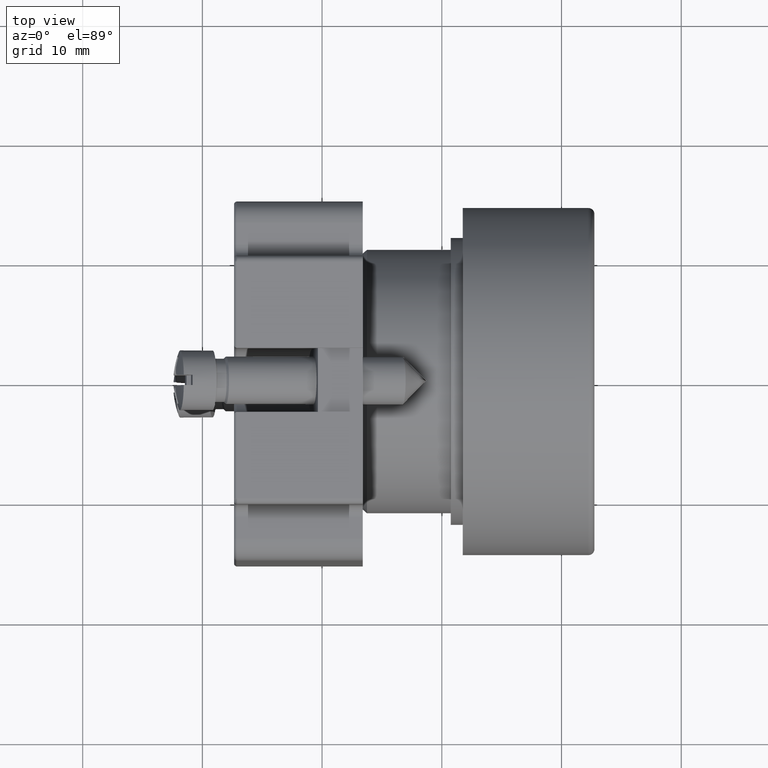
[diagram: clean part render]
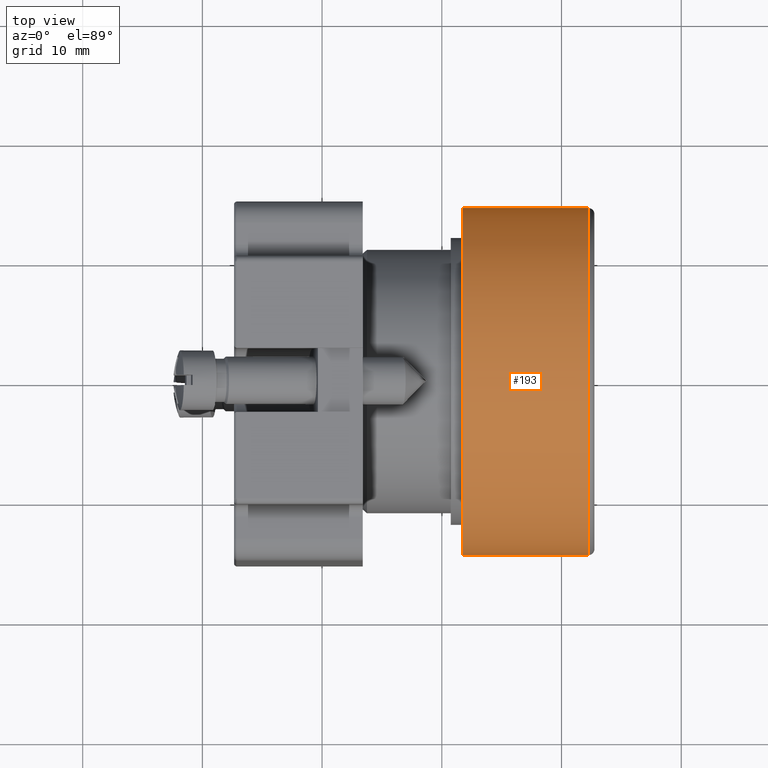
[diagram: same view with one face highlighted and labeled with its STEP entity id]
A machine part, top view. The second image highlights one B-rep face of the part: STEP entity #193.
In plain terms, the highlighted cylindrical surface (bore or boss wall) has radius 14.5 mm, axis along (1, -0, 0).
Its self-contained STEP definition (entity closure, byte-faithful):
#151=CARTESIAN_POINT('',(2.248486254077102,14.468314320504643,0.0));
#152=VERTEX_POINT('',#151);
#153=CARTESIAN_POINT('',(2.248486254077102,-0.031685679495357,0.0));
#154=DIRECTION('',(1.0,0.0,0.0));
#155=DIRECTION('',(0.0,-1.0,0.0));
#156=AXIS2_PLACEMENT_3D('',#153,#154,#155);
#157=CIRCLE('',#156,14.500000000000000);
#158=EDGE_CURVE('',#152,#152,#157,.T.);
#174=CARTESIAN_POINT('',(-2.751513745922898,-0.031685679495357,0.0));
#175=DIRECTION('',(1.0,-9.219481E-019,0.0));
#176=DIRECTION('',(0.0,1.0,0.0));
#177=AXIS2_PLACEMENT_3D('',#174,#175,#176);
#178=CYLINDRICAL_SURFACE('',#177,14.500000000000000);
#179=CARTESIAN_POINT('',(-8.251513745922900,14.468314320504641,0.0));
#180=VERTEX_POINT('',#179);
#181=CARTESIAN_POINT('',(-8.251513745922900,-0.031685679495357,0.0));
#182=DIRECTION('',(1.0,0.0,0.0));
#183=DIRECTION('',(0.0,1.0,0.0));
#184=AXIS2_PLACEMENT_3D('',#181,#182,#183);
#185=CIRCLE('',#184,14.499999999999996);
#186=EDGE_CURVE('',#180,#180,#185,.T.);
#187=ORIENTED_EDGE('',*,*,#186,.T.);
#188=EDGE_LOOP('',(#187));
#189=FACE_OUTER_BOUND('',#188,.T.);
#190=ORIENTED_EDGE('',*,*,#158,.F.);
#191=EDGE_LOOP('',(#190));
#192=FACE_BOUND('',#191,.T.);
#193=ADVANCED_FACE('',(#189,#192),#178,.T.);